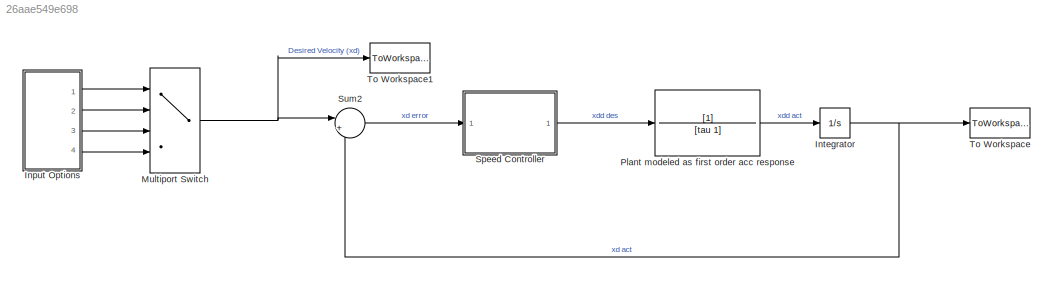
MODEL slx_26aae549e698
KIND model
CONFIG AbsTol = auto
CONFIG EnableMultiTasking = off
CONFIG FixedStep = auto
CONFIG MaxStep = auto
CONFIG MinStep = auto
CONFIG RelTol = 1e-3
CONFIG SampleTimeConstraint = Unconstrained
CONFIG Solver = VariableStepAuto
CONFIG SolverName = VariableStepAuto
CONFIG StartTime = 0.0
CONFIG StopTime = 10.0
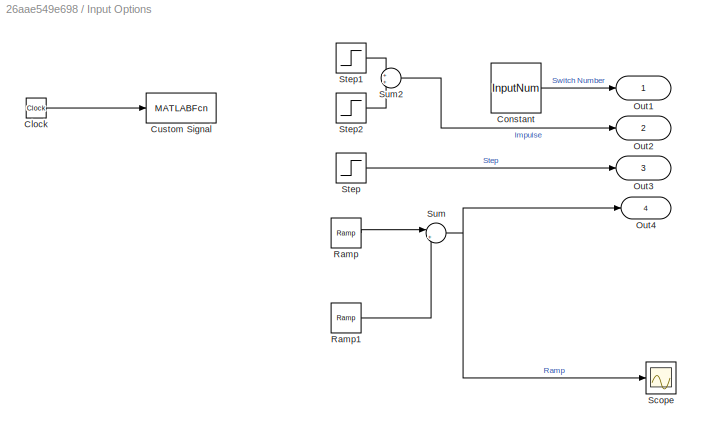
BLOCK [SubSystem] Input Options
  Ports = [0, 4]
  RequestExecContextInheritance = off
BLOCK [Clock] Input Options/Clock
  DisplayTime = on
BLOCK [Constant] Input Options/Constant
  Value = InputNum
BLOCK [MATLABFcn] Input Options/Custom Signal
  MATLABFcn = StartVel+Slope*(u-Time1) *heaviside(u-Time1)-Slope*(u-Time2) *heaviside(u-Time2)
  OutputDimensions = 1
  Ports = [1, 1]
BLOCK [Outport] Input Options/Out1
  IconDisplay = Port number and signal name
BLOCK [Outport] Input Options/Out2
  IconDisplay = Port number and signal name
  Port = 2
BLOCK [Outport] Input Options/Out3
  IconDisplay = Port number and signal name
  Port = 3
BLOCK [Outport] Input Options/Out4
  IconDisplay = Port number and signal name
  Port = 4
BLOCK [Reference] Input Options/Ramp  REF=simulink/Sources/Ramp
  Ports = [0, 1]
  SourceBlock = simulink/Sources/Ramp
  SourceProductBaseCode = SL
  SourceProductName = Simulink
  SourceType = Ramp
BLOCK [Reference] Input Options/Ramp1  REF=simulink/Sources/Ramp
  Ports = [0, 1]
  SourceBlock = simulink/Sources/Ramp
  SourceProductBaseCode = SL
  SourceProductName = Simulink
  SourceType = Ramp
BLOCK [Scope] Input Options/Scope
  Floating = off
  NumInputPorts = 1
  Ports = [1]
  ScopeSpecificationString = Simulink.scopes.TimeScopeBlockCfg('CurrentConfiguration', extmgr.ConfigurationSet(extmgr.Configuration('Core','General UI',true),extmgr.Configuration('Core','Source UI',true),extmgr.Configuration('Sources','WiredSimulink',true,'DataLoggingVariableName','ScopeData1'),extmgr.Configuration('Visuals','Time Domain',true,'SerializedDisplays',{struct('MinYLimReal','5.16062','MaxYLimReal','23.55438','YLab...<+1396ch>
BLOCK [Step] Input Options/Step
  After = EndVel
  Before = StartVel
  SampleTime = 0
  Time = InputTime
BLOCK [Step] Input Options/Step1
  After = StartVel+(1*10^10)
  Before = StartVel
  SampleTime = 0
  Time = InputTime
BLOCK [Step] Input Options/Step2
  After = -(1*10^10)
  SampleTime = 0
  Time = InputTime + (1*10^-10)
BLOCK [Sum] Input Options/Sum
  IconShape = round
  InputSameDT = off
  Inputs = |++
  OutDataTypeStr = Inherit: Inherit via internal rule
  Ports = [2, 1]
  SaturateOnIntegerOverflow = off
BLOCK [Sum] Input Options/Sum2
  IconShape = round
  InputSameDT = off
  OutDataTypeStr = Inherit: Inherit via internal rule
  Ports = [2, 1]
  SaturateOnIntegerOverflow = off
BLOCK [Integrator] Integrator
  Ports = [1, 1]
BLOCK [MultiPortSwitch] Multiport Switch
  InputSameDT = off
  Ports = [4, 1]
  SaturateOnIntegerOverflow = off
BLOCK [TransferFcn] Plant modeled as first order acc response
  Denominator = [tau 1]
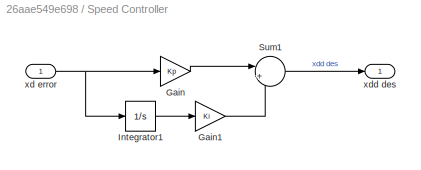
BLOCK [SubSystem] Speed Controller
  Ports = [1, 1]
  RequestExecContextInheritance = off
BLOCK [Gain] Speed Controller/Gain
  Gain = Kp
  OutDataTypeStr = Inherit: Inherit via internal rule
  ParamDataTypeStr = Inherit: Inherit via internal rule
  SaturateOnIntegerOverflow = off
BLOCK [Gain] Speed Controller/Gain1
  Gain = Ki
  OutDataTypeStr = Inherit: Inherit via internal rule
  ParamDataTypeStr = Inherit: Inherit via internal rule
  SaturateOnIntegerOverflow = off
BLOCK [Integrator] Speed Controller/Integrator1
  Ports = [1, 1]
BLOCK [Sum] Speed Controller/Sum1
  IconShape = round
  InputSameDT = off
  Inputs = |+-
  OutDataTypeStr = Inherit: Inherit via internal rule
  Ports = [2, 1]
  SaturateOnIntegerOverflow = off
BLOCK [Inport] Speed Controller/xd error
  IconDisplay = Port number
BLOCK [Outport] Speed Controller/xdd des
  IconDisplay = Port number
BLOCK [Sum] Sum2
  IconShape = round
  InputSameDT = off
  Inputs = |+-
  OutDataTypeStr = Inherit: Inherit via internal rule
  Ports = [2, 1]
  SaturateOnIntegerOverflow = off
BLOCK [ToWorkspace] To Workspace
  FixptAsFi = on
  MaxDataPoints = inf
  Ports = [1]
  SampleTime = -1
  Save2DSignal = 3-D array (concatenate along third dimension)
  VariableName = xd_act
BLOCK [ToWorkspace] To Workspace1
  FixptAsFi = on
  MaxDataPoints = inf
  Ports = [1]
  SampleTime = -1
  Save2DSignal = 3-D array (concatenate along third dimension)
  VariableName = Input
LINE Input Options/Clock:1 -> Input Options/Custom Signal:1
LINE Input Options/Constant:1 -> Input Options/Out1:1
LINE Input Options/Ramp1:1 -> Input Options/Sum:2
LINE Input Options/Ramp:1 -> Input Options/Sum:1
LINE Input Options/Step1:1 -> Input Options/Sum2:1
LINE Input Options/Step2:1 -> Input Options/Sum2:2
LINE Input Options/Step:1 -> Input Options/Out3:1
LINE Input Options/Sum2:1 -> Input Options/Out2:1
NET Input Options/Sum:1 -> Input Options/Out4:1, Input Options/Scope:1
LINE Input Options:1 -> Multiport Switch:1
LINE Input Options:2 -> Multiport Switch:2
LINE Input Options:3 -> Multiport Switch:3
LINE Input Options:4 -> Multiport Switch:4
NET Integrator:1 -> Sum2:2, To Workspace:1
NET Multiport Switch:1 -> Sum2:1, To Workspace1:1
LINE Plant modeled as first order acc response:1 -> Integrator:1
LINE Speed Controller/Gain1:1 -> Speed Controller/Sum1:2
LINE Speed Controller/Gain:1 -> Speed Controller/Sum1:1
LINE Speed Controller/Integrator1:1 -> Speed Controller/Gain1:1
LINE Speed Controller/Sum1:1 -> Speed Controller/xdd des:1
NET Speed Controller/xd error:1 -> Speed Controller/Gain:1, Speed Controller/Integrator1:1
LINE Speed Controller:1 -> Plant modeled as first order acc response:1
LINE Sum2:1 -> Speed Controller:1
note: NET lines group one-source signal fan-out (src -> all destinations, sorted); 1:1 wires keep LINE
